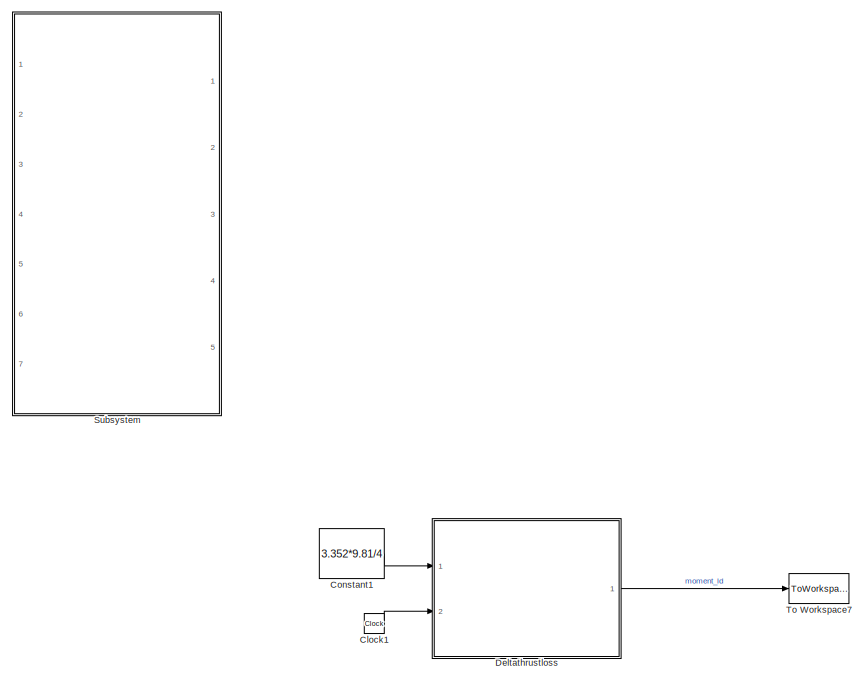
[diagram: root canvas - part 1/8, top right region]
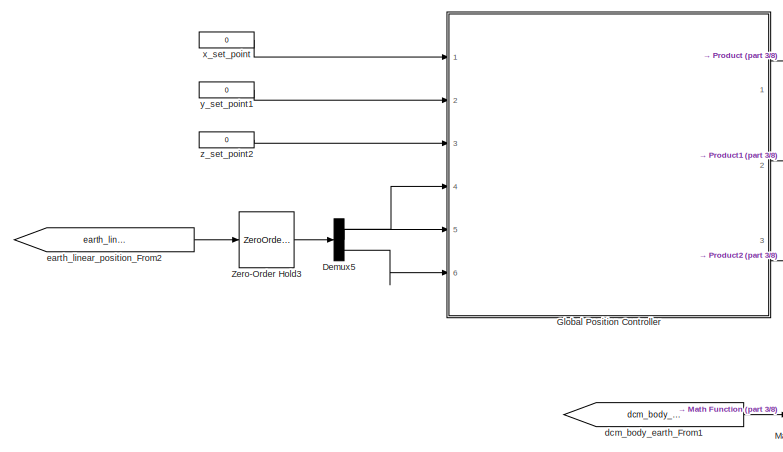
[diagram: root canvas - part 2/8, top left region]
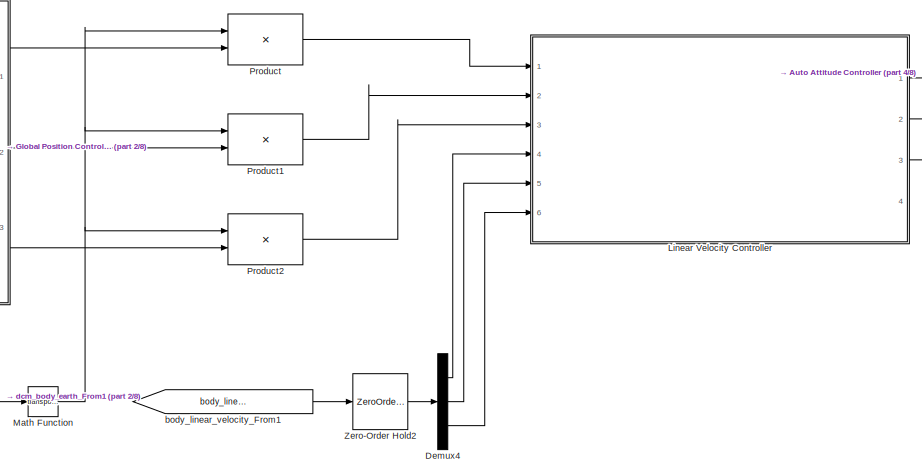
[diagram: root canvas - part 3/8, top left region]
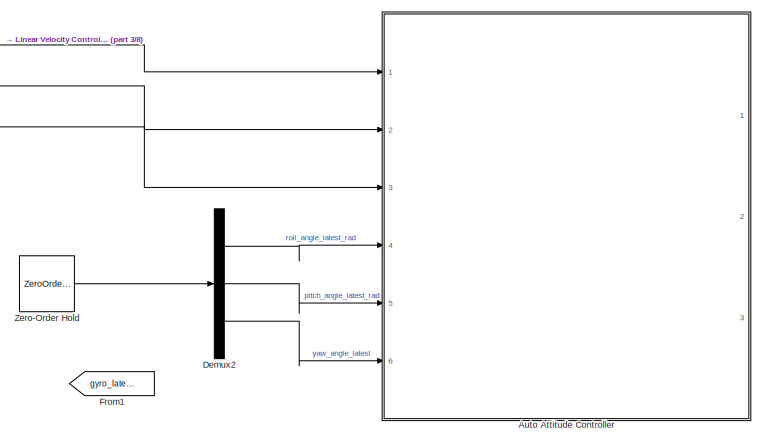
[diagram: root canvas - part 4/8, top center region]
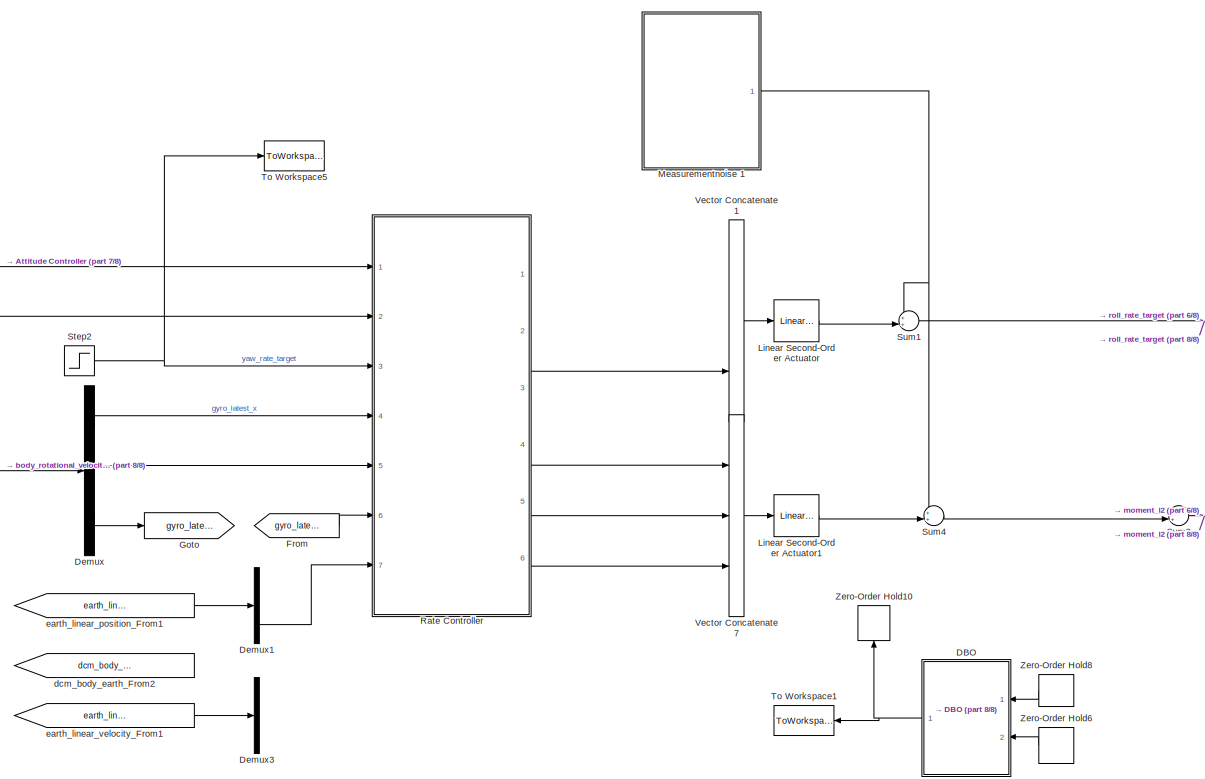
[diagram: root canvas - part 5/8, central region]
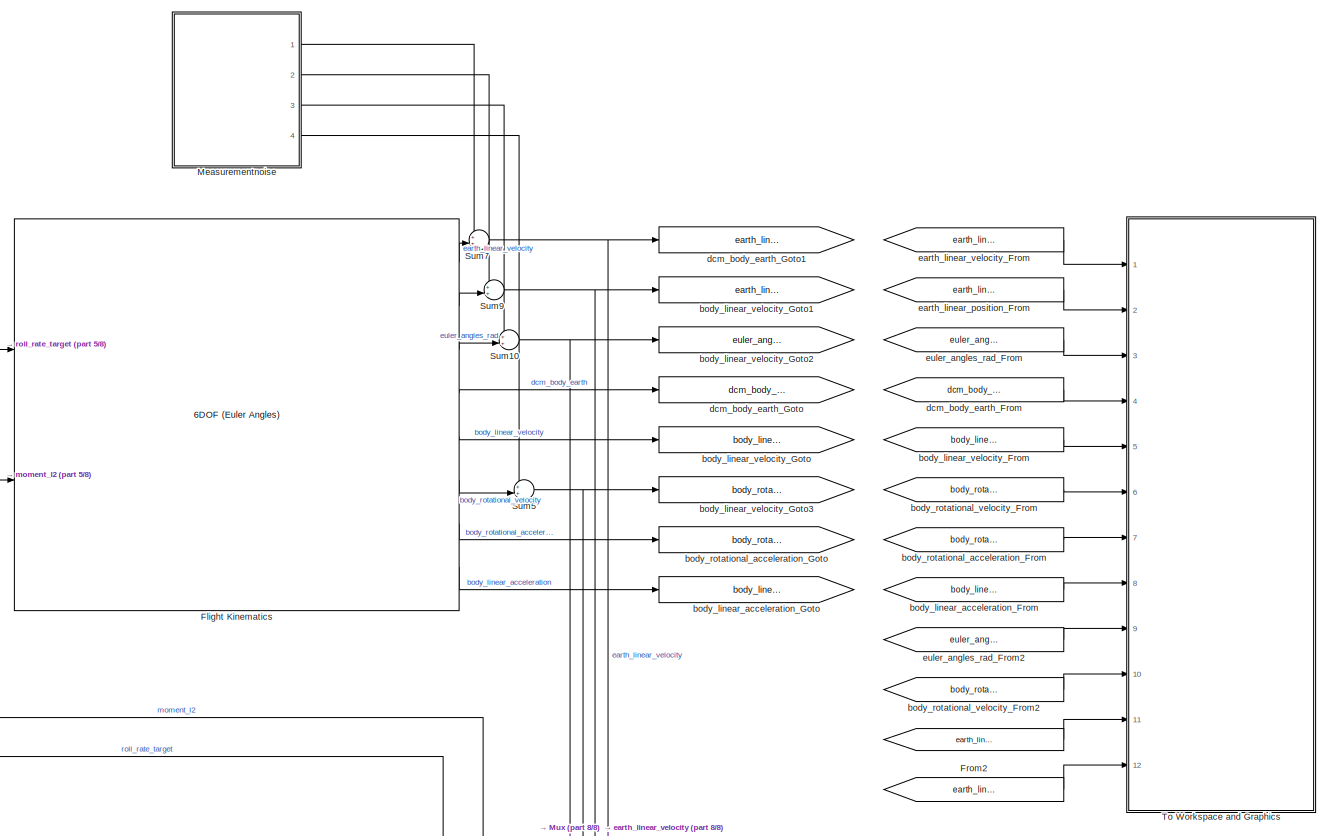
[diagram: root canvas - part 6/8, middle right region]
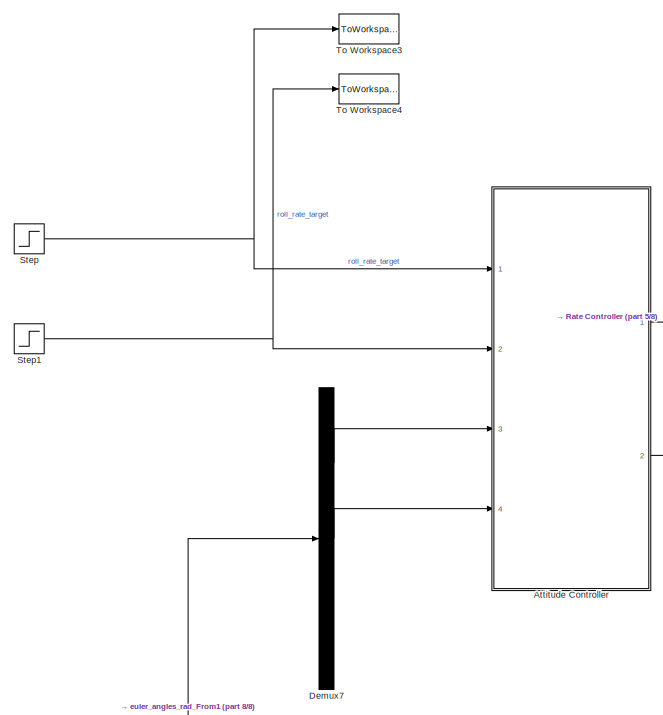
[diagram: root canvas - part 7/8, central region]
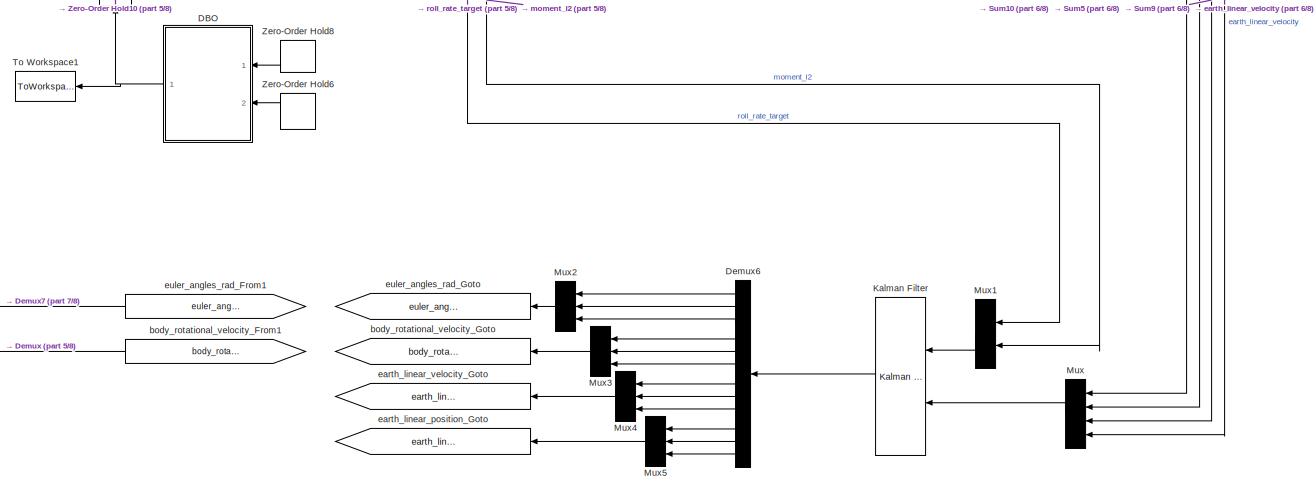
[diagram: root canvas - part 8/8, bottom right region]
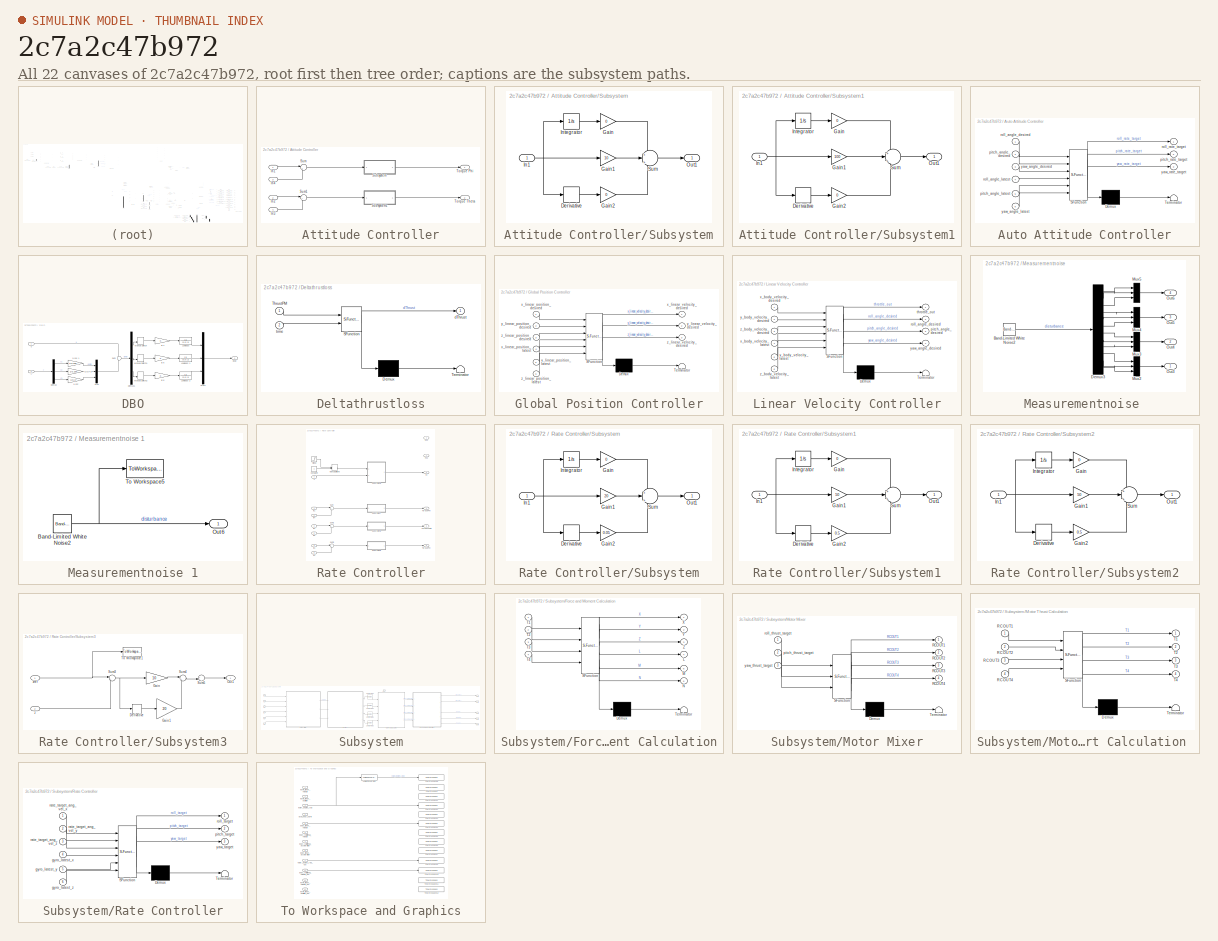
[diagram: thumbnail index - all 22 canvases of the model, root first then tree order]
MODEL slx_2c7a2c47b972
KIND model
CONFIG AbsTol = auto
CONFIG FixedStep = Ts
CONFIG MaxStep = auto
CONFIG MinStep = auto
CONFIG RelTol = 1e-3
CONFIG SampleTimeConstraint = Unconstrained
CONFIG Solver = VariableStepAuto
CONFIG SolverMode = Auto
CONFIG SolverName = VariableStepAuto
CONFIG StartTime = 0.0
CONFIG StopTime = 2
WORKSPACE source: MAT-file member
WORKSPACE MCOS: class17 (value not decoded)
BLOCK [From]       
  GotoTag = earth_linear_velocity_est
  TagVisibility = global
BLOCK [SubSystem] Attitude Controller
  Ports = [4, 2]
  RequestExecContextInheritance = off
  Variant = off
BLOCK [Inport] Attitude Controller/In1
  IconDisplay = Port number
BLOCK [Inport] Attitude Controller/In2
  IconDisplay = Port number
  Port = 2
BLOCK [Inport] Attitude Controller/In4
  IconDisplay = Port number
  Port = 3
BLOCK [Inport] Attitude Controller/In5
  IconDisplay = Port number
  Port = 4
BLOCK [SubSystem] Attitude Controller/Subsystem
  Ports = [1, 1]
  RequestExecContextInheritance = off
  Variant = off
BLOCK [Derivative] Attitude Controller/Subsystem/Derivative
BLOCK [Gain] Attitude Controller/Subsystem/Gain
  Gain = 0
  OutDataTypeStr = Inherit: Inherit via internal rule
  ParamDataTypeStr = Inherit: Inherit via internal rule
  SaturateOnIntegerOverflow = off
BLOCK [Gain] Attitude Controller/Subsystem/Gain1
  Gain = 10
  OutDataTypeStr = Inherit: Inherit via internal rule
  ParamDataTypeStr = Inherit: Inherit via internal rule
  SaturateOnIntegerOverflow = off
BLOCK [Gain] Attitude Controller/Subsystem/Gain2
  Gain = 0
  OutDataTypeStr = Inherit: Inherit via internal rule
  ParamDataTypeStr = Inherit: Inherit via internal rule
  SaturateOnIntegerOverflow = off
BLOCK [Inport] Attitude Controller/Subsystem/In1
  IconDisplay = Port number
BLOCK [Integrator] Attitude Controller/Subsystem/Integrator
  Ports = [1, 1]
BLOCK [Outport] Attitude Controller/Subsystem/Out1
  IconDisplay = Port number
BLOCK [Sum] Attitude Controller/Subsystem/Sum
  IconShape = round
  InputSameDT = off
  Inputs = +|+|+
  OutDataTypeStr = Inherit: Inherit via internal rule
  Ports = [3, 1]
  SaturateOnIntegerOverflow = off
BLOCK [SubSystem] Attitude Controller/Subsystem1
  Ports = [1, 1]
  RequestExecContextInheritance = off
  Variant = off
BLOCK [Derivative] Attitude Controller/Subsystem1/Derivative
BLOCK [Gain] Attitude Controller/Subsystem1/Gain
  Gain = 0
  OutDataTypeStr = Inherit: Inherit via internal rule
  ParamDataTypeStr = Inherit: Inherit via internal rule
  SaturateOnIntegerOverflow = off
BLOCK [Gain] Attitude Controller/Subsystem1/Gain1
  Gain = 100
  OutDataTypeStr = Inherit: Inherit via internal rule
  ParamDataTypeStr = Inherit: Inherit via internal rule
  SaturateOnIntegerOverflow = off
BLOCK [Gain] Attitude Controller/Subsystem1/Gain2
  Gain = 0
  OutDataTypeStr = Inherit: Inherit via internal rule
  ParamDataTypeStr = Inherit: Inherit via internal rule
  SaturateOnIntegerOverflow = off
BLOCK [Inport] Attitude Controller/Subsystem1/In1
  IconDisplay = Port number
BLOCK [Integrator] Attitude Controller/Subsystem1/Integrator
  Ports = [1, 1]
BLOCK [Outport] Attitude Controller/Subsystem1/Out1
  IconDisplay = Port number
BLOCK [Sum] Attitude Controller/Subsystem1/Sum
  IconShape = round
  InputSameDT = off
  Inputs = +|+|+
  OutDataTypeStr = Inherit: Inherit via internal rule
  Ports = [3, 1]
  SaturateOnIntegerOverflow = off
BLOCK [Sum] Attitude Controller/Sum
  IconShape = round
  InputSameDT = off
  Inputs = |+-
  OutDataTypeStr = Inherit: Inherit via internal rule
  Ports = [2, 1]
  SaturateOnIntegerOverflow = off
BLOCK [Sum] Attitude Controller/Sum1
  IconShape = round
  InputSameDT = off
  Inputs = |+-
  OutDataTypeStr = Inherit: Inherit via internal rule
  Ports = [2, 1]
  SaturateOnIntegerOverflow = off
BLOCK [Outport] Attitude Controller/Torque Phi
  IconDisplay = Port number
BLOCK [Outport] Attitude Controller/Torque Theta
  IconDisplay = Port number
  Port = 2
BLOCK [SubSystem] Auto Attitude Controller
  Commented = on
  ErrorFcn = Stateflow.Translate.translate
  PermitHierarchicalResolution = ExplicitOnly
  Ports = [6, 3]
  RequestExecContextInheritance = off
  SFBlockType = MATLAB Function
  TreatAsAtomicUnit = on
  Variant = off
BLOCK [Demux] Auto Attitude Controller/ Demux 
  Outputs = 1
  Ports = [1, 1]
BLOCK [S-Function] Auto Attitude Controller/ SFunction 
  EnableBusSupport = on
  FunctionName = sf_sfun
  PortCounts = [6 4]
  Ports = [6, 4]
  SFunctionDeploymentMode = off
  Tag = Stateflow S-Function Stabilize_mode 2
BLOCK [Terminator] Auto Attitude Controller/ Terminator 
BLOCK [Inport] Auto Attitude Controller/pitch_angle_desired
  IconDisplay = Port number
  Port = 2
BLOCK [Inport] Auto Attitude Controller/pitch_angle_latest
  IconDisplay = Port number
  Port = 5
BLOCK [Outport] Auto Attitude Controller/pitch_rate_target
  IconDisplay = Port number
  Port = 2
BLOCK [Inport] Auto Attitude Controller/roll_angle_desired
  IconDisplay = Port number
BLOCK [Inport] Auto Attitude Controller/roll_angle_latest
  IconDisplay = Port number
  Port = 4
BLOCK [Outport] Auto Attitude Controller/roll_rate_target
  IconDisplay = Port number
BLOCK [Inport] Auto Attitude Controller/yaw_angle_desired
  IconDisplay = Port number
  Port = 3
BLOCK [Inport] Auto Attitude Controller/yaw_angle_latest
  IconDisplay = Port number
  Port = 6
BLOCK [Outport] Auto Attitude Controller/yaw_rate_target
  IconDisplay = Port number
  Port = 3
BLOCK [Clock] Clock1
  Commented = on
BLOCK [Constant] Constant1
  Commented = on
  SampleTime = Ts
  Value = 3.352*9.81/4
BLOCK [SubSystem] DBO
  Commented = on
  Ports = [2, 1]
  RequestExecContextInheritance = off
  Variant = off
BLOCK [Gain] DBO/1//Jxx 1
  Gain = 1/0.02508
  OutDataTypeStr = Inherit: Inherit via internal rule
  ParamDataTypeStr = Inherit: Inherit via internal rule
  SaturateOnIntegerOverflow = off
BLOCK [Gain] DBO/1//Jyy 2
  Gain = 1/0.169
  OutDataTypeStr = Inherit: Inherit via internal rule
  ParamDataTypeStr = Inherit: Inherit via internal rule
  SaturateOnIntegerOverflow = off
BLOCK [Gain] DBO/1//Jzz
  Gain = 1/0.17
  OutDataTypeStr = Inherit: Inherit via internal rule
  ParamDataTypeStr = Inherit: Inherit via internal rule
  SaturateOnIntegerOverflow = off
BLOCK [Gain] DBO/B 4
  OutDataTypeStr = Inherit: Inherit via internal rule
  ParamDataTypeStr = Inherit: Inherit via internal rule
  SaturateOnIntegerOverflow = off
BLOCK [Gain] DBO/B 5
  OutDataTypeStr = Inherit: Inherit via internal rule
  ParamDataTypeStr = Inherit: Inherit via internal rule
  SaturateOnIntegerOverflow = off
BLOCK [Gain] DBO/B 6
  OutDataTypeStr = Inherit: Inherit via internal rule
  ParamDataTypeStr = Inherit: Inherit via internal rule
  SaturateOnIntegerOverflow = off
BLOCK [Demux] DBO/Demux
  DisplayOption = bar
  Outputs = 3
  Ports = [1, 3]
BLOCK [Demux] DBO/Demux1
  DisplayOption = bar
  Outputs = 3
  Ports = [1, 3]
BLOCK [TransferFcn] DBO/Lowpass 
  Denominator = [0.5 1]
BLOCK [TransferFcn] DBO/Lowpass 1
  Denominator = [0.5 1]
BLOCK [TransferFcn] DBO/Lowpass 2
  Denominator = [0.5 1]
BLOCK [ManualSwitch] DBO/Manual Switch
  CurrentSetting = 0
BLOCK [ManualSwitch] DBO/Manual Switch1
  CurrentSetting = 0
BLOCK [ManualSwitch] DBO/Manual Switch2
  CurrentSetting = 0
BLOCK [Mux] DBO/Mux
  DisplayOption = bar
  Inputs = 3
  Ports = [3, 1]
BLOCK [Mux] DBO/Mux1
  DisplayOption = bar
  Inputs = 3
  Ports = [3, 1]
BLOCK [Sum] DBO/Sum
  IconShape = round
  InputSameDT = off
  Inputs = -|+
  OutDataTypeStr = Inherit: Inherit via internal rule
  Ports = [2, 1]
  SaturateOnIntegerOverflow = off
BLOCK [Outport] DBO/dhat 
  IconDisplay = Port number
BLOCK [Inport] DBO/u 
  IconDisplay = Port number
BLOCK [Inport] DBO/y
  IconDisplay = Port number
  Port = 2
BLOCK [SubSystem] Deltathrustloss
  Commented = on
  ErrorFcn = Stateflow.Translate.translate
  PermitHierarchicalResolution = ExplicitOnly
  Ports = [2, 1]
  RequestExecContextInheritance = off
  SFBlockType = MATLAB Function
  TreatAsAtomicUnit = on
  Variant = off
BLOCK [Demux] Deltathrustloss/ Demux 
  Outputs = 1
  Ports = [1, 1]
BLOCK [S-Function] Deltathrustloss/ SFunction 
  EnableBusSupport = on
  FunctionName = sf_sfun
  PortCounts = [2 2]
  Ports = [2, 2]
  SFunctionDeploymentMode = off
  Tag = Stateflow S-Function Stabilize_mode 4
BLOCK [Terminator] Deltathrustloss/ Terminator 
BLOCK [Inport] Deltathrustloss/ThrustPM
  IconDisplay = Port number
BLOCK [Outport] Deltathrustloss/dThrust
  IconDisplay = Port number
BLOCK [Inport] Deltathrustloss/time
  IconDisplay = Port number
  Port = 2
BLOCK [Demux] Demux
  DisplayOption = bar
  Outputs = 3
  Ports = [1, 3]
BLOCK [Demux] Demux1
  DisplayOption = bar
  Outputs = 3
  Ports = [1, 3]
BLOCK [Demux] Demux2
  Commented = on
  DisplayOption = bar
  Outputs = 3
  Ports = [1, 3]
BLOCK [Demux] Demux3
  DisplayOption = bar
  Outputs = 3
  Ports = [1, 3]
BLOCK [Demux] Demux4
  Commented = on
  DisplayOption = bar
  Outputs = 3
  Ports = [1, 3]
BLOCK [Demux] Demux5
  Commented = on
  DisplayOption = bar
  Outputs = 3
  Ports = [1, 3]
BLOCK [Demux] Demux6
  DisplayOption = bar
  Outputs = 12
  Ports = [1, 12]
BLOCK [Demux] Demux7
  DisplayOption = bar
  Outputs = 3
  Ports = [1, 3]
BLOCK [Reference] Flight Kinematics  REF=aerolib6dof2/6DOF (Euler Angles)
  Ports = [2, 8]
  SourceBlock = aerolib6dof2/6DOF (Euler Angles)
  SourceType = 6DOF EoM (Body Axis)
BLOCK [From] From
  GotoTag = gyro_latest_z
BLOCK [From] From1
  Commented = on
  GotoTag = gyro_latest_z
BLOCK [From] From2
  GotoTag = earth_linear_position_est
  TagVisibility = global
BLOCK [SubSystem] Global Position Controller
  Commented = on
  ErrorFcn = Stateflow.Translate.translate
  PermitHierarchicalResolution = ExplicitOnly
  Ports = [6, 3]
  RequestExecContextInheritance = off
  SFBlockType = MATLAB Function
  TreatAsAtomicUnit = on
  Variant = off
BLOCK [Demux] Global Position Controller/ Demux 
  Outputs = 1
  Ports = [1, 1]
BLOCK [S-Function] Global Position Controller/ SFunction 
  EnableBusSupport = on
  FunctionName = sf_sfun
  PortCounts = [6 4]
  Ports = [6, 4]
  SFunctionDeploymentMode = off
  Tag = Stateflow S-Function Stabilize_mode 7
BLOCK [Terminator] Global Position Controller/ Terminator 
BLOCK [Inport] Global Position Controller/x_linear_position_desired
  IconDisplay = Port number
BLOCK [Inport] Global Position Controller/x_linear_position_latest
  IconDisplay = Port number
  Port = 4
BLOCK [Outport] Global Position Controller/x_linear_velocity_desired
  IconDisplay = Port number
BLOCK [Inport] Global Position Controller/y_linear_position_desired
  IconDisplay = Port number
  Port = 2
BLOCK [Inport] Global Position Controller/y_linear_position_latest
  IconDisplay = Port number
  Port = 5
BLOCK [Outport] Global Position Controller/y_linear_velocity_desired
  IconDisplay = Port number
  Port = 2
BLOCK [Inport] Global Position Controller/z_linear_position_desired
  IconDisplay = Port number
  Port = 3
BLOCK [Inport] Global Position Controller/z_linear_position_latest
  IconDisplay = Port number
  Port = 6
BLOCK [Outport] Global Position Controller/z_linear_velocity_desired
  IconDisplay = Port number
  Port = 3
BLOCK [Goto] Goto
  GotoTag = gyro_latest_z
BLOCK [Reference] Kalman Filter  REF=ctrlSharedLib/Kalman Filter
  Ports = [2, 1]
  SourceBlock = ctrlSharedLib/Kalman Filter
  SourceType = ctrlKalmanFilter
BLOCK [Reference] Linear Second-Order Actuator  REF=aerolibactuator/Linear Second-Order Actuator
  Ports = [1, 1]
  SourceBlock = aerolibactuator/Linear Second-Order Actuator
  SourceType = LinearSecondOrderActuator
BLOCK [Reference] Linear Second-Order Actuator1  REF=aerolibactuator/Linear Second-Order Actuator
  Ports = [1, 1]
  SourceBlock = aerolibactuator/Linear Second-Order Actuator
  SourceType = LinearSecondOrderActuator
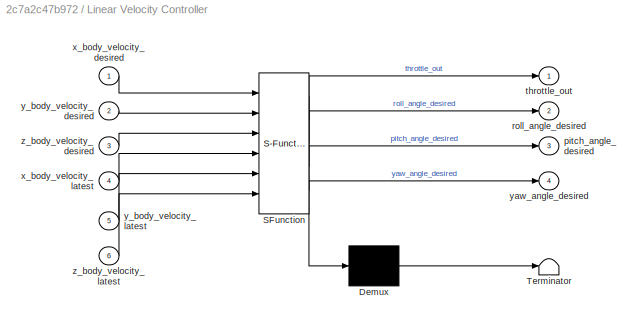
BLOCK [SubSystem] Linear Velocity Controller
  Commented = on
  ErrorFcn = Stateflow.Translate.translate
  PermitHierarchicalResolution = ExplicitOnly
  Ports = [6, 4]
  RequestExecContextInheritance = off
  SFBlockType = MATLAB Function
  TreatAsAtomicUnit = on
  Variant = off
BLOCK [Demux] Linear Velocity Controller/ Demux 
  Outputs = 1
  Ports = [1, 1]
BLOCK [S-Function] Linear Velocity Controller/ SFunction 
  EnableBusSupport = on
  FunctionName = sf_sfun
  PortCounts = [6 5]
  Ports = [6, 5]
  SFunctionDeploymentMode = off
  Tag = Stateflow S-Function Stabilize_mode 3
BLOCK [Terminator] Linear Velocity Controller/ Terminator 
BLOCK [Outport] Linear Velocity Controller/pitch_angle_desired
  IconDisplay = Port number
  Port = 3
BLOCK [Outport] Linear Velocity Controller/roll_angle_desired
  IconDisplay = Port number
  Port = 2
BLOCK [Outport] Linear Velocity Controller/throttle_out
  IconDisplay = Port number
BLOCK [Inport] Linear Velocity Controller/x_body_velocity_desired
  IconDisplay = Port number
BLOCK [Inport] Linear Velocity Controller/x_body_velocity_latest
  IconDisplay = Port number
  Port = 4
BLOCK [Inport] Linear Velocity Controller/y_body_velocity_desired
  IconDisplay = Port number
  Port = 2
BLOCK [Inport] Linear Velocity Controller/y_body_velocity_latest
  IconDisplay = Port number
  Port = 5
BLOCK [Outport] Linear Velocity Controller/yaw_angle_desired
  IconDisplay = Port number
  Port = 4
BLOCK [Inport] Linear Velocity Controller/z_body_velocity_desired
  IconDisplay = Port number
  Port = 3
BLOCK [Inport] Linear Velocity Controller/z_body_velocity_latest
  IconDisplay = Port number
  Port = 6
BLOCK [Math] Math Function
  Commented = on
  Operator = transpose
  Ports = [1, 1]
BLOCK [SubSystem] Measurementnoise 
  Ports = [0, 4]
  RequestExecContextInheritance = off
  Variant = off
BLOCK [Reference] Measurementnoise /Band-Limited White Noise2  REF=simulink/Sources/Band-Limited
White Noise
  Ports = [0, 1]
  SourceBlock = simulink/Sources/Band-Limited\nWhite Noise
  SourceType = Band-Limited White Noise.
BLOCK [Demux] Measurementnoise /Demux3
  DisplayOption = bar
  Outputs = 12
  Ports = [1, 12]
BLOCK [Mux] Measurementnoise /Mux2
  DisplayOption = bar
  Inputs = 3
  Ports = [3, 1]
BLOCK [Mux] Measurementnoise /Mux3
  DisplayOption = bar
  Inputs = 3
  Ports = [3, 1]
BLOCK [Mux] Measurementnoise /Mux4
  DisplayOption = bar
  Inputs = 3
  Ports = [3, 1]
BLOCK [Mux] Measurementnoise /Mux5
  DisplayOption = bar
  Inputs = 3
  Ports = [3, 1]
BLOCK [Outport] Measurementnoise /Out3
  IconDisplay = Port number
BLOCK [Outport] Measurementnoise /Out4
  IconDisplay = Port number
  Port = 2
BLOCK [Outport] Measurementnoise /Out5
  IconDisplay = Port number
  Port = 3
BLOCK [Outport] Measurementnoise /Out6
  IconDisplay = Port number
  Port = 4
BLOCK [SubSystem] Measurementnoise 1
  Ports = [0, 1]
  RequestExecContextInheritance = off
  Variant = off
BLOCK [Reference] Measurementnoise 1/Band-Limited White Noise2  REF=simulink/Sources/Band-Limited
White Noise
  Ports = [0, 1]
  SourceBlock = simulink/Sources/Band-Limited\nWhite Noise
  SourceType = Band-Limited White Noise.
BLOCK [Outport] Measurementnoise 1/Out6
  IconDisplay = Port number
BLOCK [ToWorkspace] Measurementnoise 1/To Workspace5
  FixptAsFi = on
  MaxDataPoints = inf
  Ports = [1]
  SampleTime = -1
  Save2DSignal = 3-D array (concatenate along third dimension)
  VariableName = whitenoise
BLOCK [Mux] Mux
  DisplayOption = bar
  Ports = [4, 1]
BLOCK [Mux] Mux1
  DisplayOption = bar
  Inputs = 2
  Ports = [2, 1]
BLOCK [Mux] Mux2
  DisplayOption = bar
  Inputs = 3
  Ports = [3, 1]
BLOCK [Mux] Mux3
  DisplayOption = bar
  Inputs = 3
  Ports = [3, 1]
BLOCK [Mux] Mux4
  DisplayOption = bar
  Inputs = 3
  Ports = [3, 1]
BLOCK [Mux] Mux5
  DisplayOption = bar
  Inputs = 3
  Ports = [3, 1]
BLOCK [Product] Product
  Commented = on
  InputSameDT = off
  Multiplication = Matrix(*)
  OutDataTypeStr = Inherit: Inherit via internal rule
  Ports = [2, 1]
  RndMeth = Floor
  SaturateOnIntegerOverflow = off
BLOCK [Product] Product1
  Commented = on
  InputSameDT = off
  Multiplication = Matrix(*)
  OutDataTypeStr = Inherit: Inherit via internal rule
  Ports = [2, 1]
  RndMeth = Floor
  SaturateOnIntegerOverflow = off
BLOCK [Product] Product2
  Commented = on
  InputSameDT = off
  Multiplication = Matrix(*)
  OutDataTypeStr = Inherit: Inherit via internal rule
  Ports = [2, 1]
  RndMeth = Floor
  SaturateOnIntegerOverflow = off
BLOCK [SubSystem] Rate Controller
  Ports = [7, 6]
  RequestExecContextInheritance = off
  Variant = off
BLOCK [Constant] Rate Controller/Constant4
  SampleTime = 0
  Value = 0
BLOCK [Outport] Rate Controller/Fz  
  IconDisplay = Port number
  Port = 3
BLOCK [Outport] Rate Controller/Fz  1
  IconDisplay = Port number
BLOCK [Outport] Rate Controller/Fz  2
  IconDisplay = Port number
  Port = 2
BLOCK [Inport] Rate Controller/In1
  IconDisplay = Port number
BLOCK [Inport] Rate Controller/In2
  IconDisplay = Port number
  Port = 2
BLOCK [Inport] Rate Controller/In3
  IconDisplay = Port number
  Port = 3
BLOCK [Inport] Rate Controller/In4
  IconDisplay = Port number
  Port = 4
BLOCK [Inport] Rate Controller/In5
  IconDisplay = Port number
  Port = 5
BLOCK [Inport] Rate Controller/In6
  IconDisplay = Port number
  Port = 6
BLOCK [ManualSwitch] Rate Controller/Manual Switch6
BLOCK [Step] Rate Controller/Step6
  SampleTime = 0
  Time = 2
BLOCK [SubSystem] Rate Controller/Subsystem
  Ports = [1, 1]
  RequestExecContextInheritance = off
  Variant = off
BLOCK [Derivative] Rate Controller/Subsystem/Derivative
BLOCK [Gain] Rate Controller/Subsystem/Gain
  Gain = 0
  OutDataTypeStr = Inherit: Inherit via internal rule
  ParamDataTypeStr = Inherit: Inherit via internal rule
  SaturateOnIntegerOverflow = off
BLOCK [Gain] Rate Controller/Subsystem/Gain1
  Gain = 20
  OutDataTypeStr = Inherit: Inherit via internal rule
  ParamDataTypeStr = Inherit: Inherit via internal rule
  SaturateOnIntegerOverflow = off
BLOCK [Gain] Rate Controller/Subsystem/Gain2
  Gain = 0.05
  OutDataTypeStr = Inherit: Inherit via internal rule
  ParamDataTypeStr = Inherit: Inherit via internal rule
  SaturateOnIntegerOverflow = off
BLOCK [Inport] Rate Controller/Subsystem/In1
  IconDisplay = Port number
BLOCK [Integrator] Rate Controller/Subsystem/Integrator
  Ports = [1, 1]
BLOCK [Outport] Rate Controller/Subsystem/Out1
  IconDisplay = Port number
BLOCK [Sum] Rate Controller/Subsystem/Sum
  IconShape = round
  InputSameDT = off
  Inputs = +|+|+
  OutDataTypeStr = Inherit: Inherit via internal rule
  Ports = [3, 1]
  SaturateOnIntegerOverflow = off
BLOCK [SubSystem] Rate Controller/Subsystem1
  Ports = [1, 1]
  RequestExecContextInheritance = off
  Variant = off
BLOCK [Derivative] Rate Controller/Subsystem1/Derivative
BLOCK [Gain] Rate Controller/Subsystem1/Gain
  Gain = 0
  OutDataTypeStr = Inherit: Inherit via internal rule
  ParamDataTypeStr = Inherit: Inherit via internal rule
  SaturateOnIntegerOverflow = off
BLOCK [Gain] Rate Controller/Subsystem1/Gain1
  Gain = 50
  OutDataTypeStr = Inherit: Inherit via internal rule
  ParamDataTypeStr = Inherit: Inherit via internal rule
  SaturateOnIntegerOverflow = off
BLOCK [Gain] Rate Controller/Subsystem1/Gain2
  Gain = 0.5
  OutDataTypeStr = Inherit: Inherit via internal rule
  ParamDataTypeStr = Inherit: Inherit via internal rule
  SaturateOnIntegerOverflow = off
BLOCK [Inport] Rate Controller/Subsystem1/In1
  IconDisplay = Port number
BLOCK [Integrator] Rate Controller/Subsystem1/Integrator
  Ports = [1, 1]
BLOCK [Outport] Rate Controller/Subsystem1/Out1
  IconDisplay = Port number
BLOCK [Sum] Rate Controller/Subsystem1/Sum
  IconShape = round
  InputSameDT = off
  Inputs = +|+|+
  OutDataTypeStr = Inherit: Inherit via internal rule
  Ports = [3, 1]
  SaturateOnIntegerOverflow = off
BLOCK [SubSystem] Rate Controller/Subsystem2
  Ports = [1, 1]
  RequestExecContextInheritance = off
  Variant = off
BLOCK [Derivative] Rate Controller/Subsystem2/Derivative
BLOCK [Gain] Rate Controller/Subsystem2/Gain
  Gain = 0
  OutDataTypeStr = Inherit: Inherit via internal rule
  ParamDataTypeStr = Inherit: Inherit via internal rule
  SaturateOnIntegerOverflow = off
BLOCK [Gain] Rate Controller/Subsystem2/Gain1
  Gain = 50
  OutDataTypeStr = Inherit: Inherit via internal rule
  ParamDataTypeStr = Inherit: Inherit via internal rule
  SaturateOnIntegerOverflow = off
BLOCK [Gain] Rate Controller/Subsystem2/Gain2
  Gain = 0.5
  OutDataTypeStr = Inherit: Inherit via internal rule
  ParamDataTypeStr = Inherit: Inherit via internal rule
  SaturateOnIntegerOverflow = off
BLOCK [Inport] Rate Controller/Subsystem2/In1
  IconDisplay = Port number
BLOCK [Integrator] Rate Controller/Subsystem2/Integrator
  Ports = [1, 1]
BLOCK [Outport] Rate Controller/Subsystem2/Out1
  IconDisplay = Port number
BLOCK [Sum] Rate Controller/Subsystem2/Sum
  IconShape = round
  InputSameDT = off
  Inputs = +|+|+
  OutDataTypeStr = Inherit: Inherit via internal rule
  Ports = [3, 1]
  SaturateOnIntegerOverflow = off
BLOCK [SubSystem] Rate Controller/Subsystem3
  Ports = [2, 1]
  RequestExecContextInheritance = off
  Variant = off
BLOCK [Derivative] Rate Controller/Subsystem3/Derivative
BLOCK [Gain] Rate Controller/Subsystem3/Gain
  Gain = 10
  OutDataTypeStr = Inherit: Inherit via internal rule
  ParamDataTypeStr = Inherit: Inherit via internal rule
  SaturateOnIntegerOverflow = off
BLOCK [Gain] Rate Controller/Subsystem3/Gain1
  Gain = 20
  OutDataTypeStr = Inherit: Inherit via internal rule
  ParamDataTypeStr = Inherit: Inherit via internal rule
  SaturateOnIntegerOverflow = off
BLOCK [Outport] Rate Controller/Subsystem3/Out1
  IconDisplay = Port number
BLOCK [Sum] Rate Controller/Subsystem3/Sum3
  IconShape = round
  InputSameDT = off
  Inputs = |+-
  OutDataTypeStr = Inherit: Inherit via internal rule
  Ports = [2, 1]
  SaturateOnIntegerOverflow = off
BLOCK [Sum] Rate Controller/Subsystem3/Sum4
  IconShape = round
  InputSameDT = off
  Inputs = |++
  OutDataTypeStr = Inherit: Inherit via internal rule
  Ports = [2, 1]
  SaturateOnIntegerOverflow = off
BLOCK [Sum] Rate Controller/Subsystem3/Sum5
  IconShape = round
  InputSameDT = off
  Inputs = ++|
  OutDataTypeStr = Inherit: Inherit via internal rule
  Ports = [2, 1]
  SaturateOnIntegerOverflow = off
BLOCK [ToWorkspace] Rate Controller/Subsystem3/To Workspace1
  FixptAsFi = on
  MaxDataPoints = inf
  Ports = [1]
  SampleTime = -1
  Save2DSignal = 3-D array (concatenate along third dimension)
  VariableName = zref
BLOCK [Inport] Rate Controller/Subsystem3/z
  IconDisplay = Port number
  Port = 2
BLOCK [Inport] Rate Controller/Subsystem3/zref
  IconDisplay = Port number
BLOCK [Sum] Rate Controller/Sum
  IconShape = round
  InputSameDT = off
  Inputs = |+-
  OutDataTypeStr = Inherit: Inherit via internal rule
  Ports = [2, 1]
  SaturateOnIntegerOverflow = off
BLOCK [Sum] Rate Controller/Sum1
  IconShape = round
  InputSameDT = off
  Inputs = |+-
  OutDataTypeStr = Inherit: Inherit via internal rule
  Ports = [2, 1]
  SaturateOnIntegerOverflow = off
BLOCK [Sum] Rate Controller/Sum2
  IconShape = round
  InputSameDT = off
  Inputs = |+-
  OutDataTypeStr = Inherit: Inherit via internal rule
  Ports = [2, 1]
  SaturateOnIntegerOverflow = off
BLOCK [Outport] Rate Controller/Torque Phi
  IconDisplay = Port number
  Port = 4
BLOCK [Outport] Rate Controller/Torque Psi
  IconDisplay = Port number
  Port = 6
BLOCK [Outport] Rate Controller/Torque Theta
  IconDisplay = Port number
  Port = 5
BLOCK [Inport] Rate Controller/z
  IconDisplay = Port number
  Port = 7
BLOCK [Step] Step
  After = 0.1
  SampleTime = 0
BLOCK [Step] Step1
  After = 0.1
  SampleTime = 0
  Time = 0.5
BLOCK [Step] Step2
  After = 10
  SampleTime = 0
BLOCK [SubSystem] Subsystem
  Commented = on
  Ports = [7, 5]
  RequestExecContextInheritance = off
  Variant = off
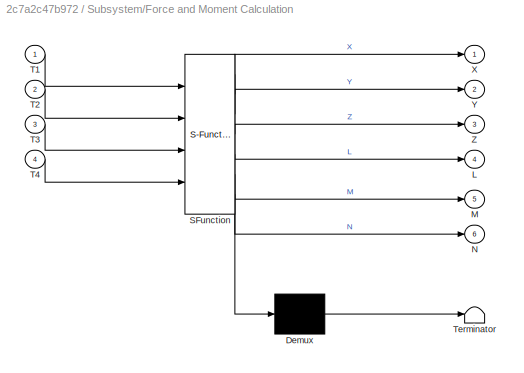
BLOCK [SubSystem] Subsystem/Force and Moment Calculation
  ErrorFcn = Stateflow.Translate.translate
  PermitHierarchicalResolution = ExplicitOnly
  Ports = [4, 6]
  RequestExecContextInheritance = off
  SFBlockType = MATLAB Function
  TreatAsAtomicUnit = on
  Variant = off
BLOCK [Demux] Subsystem/Force and Moment Calculation/ Demux 
  Outputs = 1
  Ports = [1, 1]
BLOCK [S-Function] Subsystem/Force and Moment Calculation/ SFunction 
  EnableBusSupport = on
  FunctionName = sf_sfun
  PortCounts = [4 7]
  Ports = [4, 7]
  SFunctionDeploymentMode = off
  Tag = Stateflow S-Function Stabilize_mode 6
BLOCK [Terminator] Subsystem/Force and Moment Calculation/ Terminator 
BLOCK [Outport] Subsystem/Force and Moment Calculation/L
  IconDisplay = Port number
  Port = 4
BLOCK [Outport] Subsystem/Force and Moment Calculation/M
  IconDisplay = Port number
  Port = 5
BLOCK [Outport] Subsystem/Force and Moment Calculation/N
  IconDisplay = Port number
  Port = 6
BLOCK [Inport] Subsystem/Force and Moment Calculation/T1
  IconDisplay = Port number
BLOCK [Inport] Subsystem/Force and Moment Calculation/T2
  IconDisplay = Port number
  Port = 2
BLOCK [Inport] Subsystem/Force and Moment Calculation/T3
  IconDisplay = Port number
  Port = 3
BLOCK [Inport] Subsystem/Force and Moment Calculation/T4
  IconDisplay = Port number
  Port = 4
BLOCK [Outport] Subsystem/Force and Moment Calculation/X
  IconDisplay = Port number
BLOCK [Outport] Subsystem/Force and Moment Calculation/Y
  IconDisplay = Port number
  Port = 2
BLOCK [Outport] Subsystem/Force and Moment Calculation/Z
  IconDisplay = Port number
  Port = 3
BLOCK [Inport] Subsystem/In1
  IconDisplay = Port number
BLOCK [Inport] Subsystem/In2
  IconDisplay = Port number
  Port = 2
BLOCK [Inport] Subsystem/In3
  IconDisplay = Port number
  Port = 6
BLOCK [Inport] Subsystem/In5
  IconDisplay = Port number
  Port = 3
BLOCK [Inport] Subsystem/In6
  IconDisplay = Port number
  Port = 5
BLOCK [Inport] Subsystem/In7
  IconDisplay = Port number
  Port = 4
BLOCK [SubSystem] Subsystem/Motor Mixer
  ErrorFcn = Stateflow.Translate.translate
  PermitHierarchicalResolution = ExplicitOnly
  Ports = [3, 4]
  RequestExecContextInheritance = off
  SFBlockType = MATLAB Function
  TreatAsAtomicUnit = on
  Variant = off
BLOCK [Demux] Subsystem/Motor Mixer/ Demux 
  Outputs = 1
  Ports = [1, 1]
BLOCK [S-Function] Subsystem/Motor Mixer/ SFunction 
  EnableBusSupport = on
  FunctionName = sf_sfun
  PortCounts = [3 5]
  Ports = [3, 5]
  SFunctionDeploymentMode = off
  Tag = Stateflow S-Function Stabilize_mode 5
BLOCK [Terminator] Subsystem/Motor Mixer/ Terminator 
BLOCK [Outport] Subsystem/Motor Mixer/RCOUT1
  IconDisplay = Port number
BLOCK [Outport] Subsystem/Motor Mixer/RCOUT2
  IconDisplay = Port number
  Port = 2
BLOCK [Outport] Subsystem/Motor Mixer/RCOUT3
  IconDisplay = Port number
  Port = 3
BLOCK [Outport] Subsystem/Motor Mixer/RCOUT4
  IconDisplay = Port number
  Port = 4
BLOCK [Inport] Subsystem/Motor Mixer/pitch_thrust_target
  IconDisplay = Port number
  Port = 2
BLOCK [Inport] Subsystem/Motor Mixer/roll_thrust_target
  IconDisplay = Port number
BLOCK [Inport] Subsystem/Motor Mixer/yaw_thrust_target
  IconDisplay = Port number
  Port = 3
BLOCK [SubSystem] Subsystem/Motor Thrust Calculation 
  ErrorFcn = Stateflow.Translate.translate
  PermitHierarchicalResolution = ExplicitOnly
  Ports = [4, 4]
  RequestExecContextInheritance = off
  SFBlockType = MATLAB Function
  TreatAsAtomicUnit = on
  Variant = off
BLOCK [Demux] Subsystem/Motor Thrust Calculation / Demux 
  Outputs = 1
  Ports = [1, 1]
BLOCK [S-Function] Subsystem/Motor Thrust Calculation / SFunction 
  EnableBusSupport = on
  FunctionName = sf_sfun
  PortCounts = [4 5]
  Ports = [4, 5]
  SFunctionDeploymentMode = off
  Tag = Stateflow S-Function Stabilize_mode 8
BLOCK [Terminator] Subsystem/Motor Thrust Calculation / Terminator 
BLOCK [Inport] Subsystem/Motor Thrust Calculation /RCOUT1
  IconDisplay = Port number
BLOCK [Inport] Subsystem/Motor Thrust Calculation /RCOUT2
  IconDisplay = Port number
  Port = 2
BLOCK [Inport] Subsystem/Motor Thrust Calculation /RCOUT3
  IconDisplay = Port number
  Port = 3
BLOCK [Inport] Subsystem/Motor Thrust Calculation /RCOUT4
  IconDisplay = Port number
  Port = 4
BLOCK [Outport] Subsystem/Motor Thrust Calculation /T1
  IconDisplay = Port number
BLOCK [Outport] Subsystem/Motor Thrust Calculation /T2
  IconDisplay = Port number
  Port = 2
BLOCK [Outport] Subsystem/Motor Thrust Calculation /T3
  IconDisplay = Port number
  Port = 3
BLOCK [Outport] Subsystem/Motor Thrust Calculation /T4
  IconDisplay = Port number
  Port = 4
BLOCK [Outport] Subsystem/Out1
  IconDisplay = Port number
BLOCK [Outport] Subsystem/Out2
  IconDisplay = Port number
  Port = 2
BLOCK [Outport] Subsystem/Out4
  IconDisplay = Port number
  Port = 3
BLOCK [Outport] Subsystem/Out5
  IconDisplay = Port number
  Port = 4
BLOCK [Outport] Subsystem/Out6
  IconDisplay = Port number
  Port = 5
BLOCK [SubSystem] Subsystem/Rate Controller
  ErrorFcn = Stateflow.Translate.translate
  PermitHierarchicalResolution = ExplicitOnly
  Ports = [6, 3]
  RequestExecContextInheritance = off
  SFBlockType = MATLAB Function
  TreatAsAtomicUnit = on
  Variant = off
BLOCK [Demux] Subsystem/Rate Controller/ Demux 
  Outputs = 1
  Ports = [1, 1]
BLOCK [S-Function] Subsystem/Rate Controller/ SFunction 
  EnableBusSupport = on
  FunctionName = sf_sfun
  PortCounts = [6 4]
  Ports = [6, 4]
  SFunctionDeploymentMode = off
  Tag = Stateflow S-Function Stabilize_mode 1
BLOCK [Terminator] Subsystem/Rate Controller/ Terminator 
BLOCK [Inport] Subsystem/Rate Controller/gyro_latest_x
  IconDisplay = Port number
  Port = 4
BLOCK [Inport] Subsystem/Rate Controller/gyro_latest_y
  IconDisplay = Port number
  Port = 5
BLOCK [Inport] Subsystem/Rate Controller/gyro_latest_z
  IconDisplay = Port number
  Port = 6
BLOCK [Outport] Subsystem/Rate Controller/pitch_target
  IconDisplay = Port number
  Port = 2
BLOCK [Inport] Subsystem/Rate Controller/rate_target_ang_vel_x
  IconDisplay = Port number
BLOCK [Inport] Subsystem/Rate Controller/rate_target_ang_vel_y
  IconDisplay = Port number
  Port = 2
BLOCK [Inport] Subsystem/Rate Controller/rate_target_ang_vel_z
  IconDisplay = Port number
  Port = 3
BLOCK [Outport] Subsystem/Rate Controller/roll_target
  IconDisplay = Port number
BLOCK [Outport] Subsystem/Rate Controller/yaw_target
  IconDisplay = Port number
  Port = 3
BLOCK [ZeroOrderHold] Subsystem/Zero-Order Hold2
  SampleTime = dtzoh
BLOCK [ZeroOrderHold] Subsystem/Zero-Order Hold3
  SampleTime = dtzoh
BLOCK [ZeroOrderHold] Subsystem/Zero-Order Hold4
  SampleTime = dtzoh
BLOCK [ZeroOrderHold] Subsystem/Zero-Order Hold5
  SampleTime = dtzoh
BLOCK [Inport] Subsystem/zdot
  IconDisplay = Port number
  Port = 7
BLOCK [Sum] Sum1
  IconShape = round
  InputSameDT = off
  Inputs = ++|
  OutDataTypeStr = Inherit: Inherit via internal rule
  Ports = [2, 1]
  SaturateOnIntegerOverflow = off
BLOCK [Sum] Sum10
  IconShape = round
  InputSameDT = off
  Inputs = ++|
  OutDataTypeStr = Inherit: Inherit via internal rule
  Ports = [2, 1]
  SaturateOnIntegerOverflow = off
BLOCK [Sum] Sum3
  IconShape = round
  InputSameDT = off
  Inputs = -+|
  OutDataTypeStr = Inherit: Inherit via internal rule
  Ports = [2, 1]
  SaturateOnIntegerOverflow = off
BLOCK [Sum] Sum4
  IconShape = round
  InputSameDT = off
  Inputs = ++|
  OutDataTypeStr = Inherit: Inherit via internal rule
  Ports = [2, 1]
  SaturateOnIntegerOverflow = off
BLOCK [Sum] Sum5
  IconShape = round
  InputSameDT = off
  Inputs = ++|
  OutDataTypeStr = Inherit: Inherit via internal rule
  Ports = [2, 1]
  SaturateOnIntegerOverflow = off
BLOCK [Sum] Sum7
  IconShape = round
  InputSameDT = off
  Inputs = ++|
  OutDataTypeStr = Inherit: Inherit via internal rule
  Ports = [2, 1]
  SaturateOnIntegerOverflow = off
BLOCK [Sum] Sum9
  IconShape = round
  InputSameDT = off
  Inputs = ++|
  OutDataTypeStr = Inherit: Inherit via internal rule
  Ports = [2, 1]
  SaturateOnIntegerOverflow = off
BLOCK [SubSystem] To Workspace and Graphics
  Ports = [12]
  RequestExecContextInheritance = off
  Variant = off
BLOCK [Reference] To Workspace and Graphics/Angle Conversion  REF=aerolibconvert2/Angle Conversion
  Ports = [1, 1]
  SourceBlock = aerolibconvert2/Angle Conversion
  SourceType = Angle Conversion
BLOCK [ToWorkspace] To Workspace and Graphics/To Workspace
  FixptAsFi = on
  MaxDataPoints = inf
  Ports = [1]
  SampleTime = -1
  Save2DSignal = 3-D array (concatenate along third dimension)
  VariableName = earth_linear_velocity
BLOCK [ToWorkspace] To Workspace and Graphics/To Workspace1
  FixptAsFi = on
  MaxDataPoints = inf
  Ports = [1]
  SampleTime = -1
  Save2DSignal = 3-D array (concatenate along third dimension)
  VariableName = earth_linear_position
BLOCK [ToWorkspace] To Workspace and Graphics/To Workspace10
  FixptAsFi = on
  MaxDataPoints = inf
  Ports = [1]
  SampleTime = -1
  Save2DSignal = 3-D array (concatenate along third dimension)
  VariableName = body_rotational_velocity_est
BLOCK [ToWorkspace] To Workspace and Graphics/To Workspace11
  FixptAsFi = on
  MaxDataPoints = inf
  Ports = [1]
  SampleTime = -1
  Save2DSignal = 3-D array (concatenate along third dimension)
  VariableName = earth_linear_velocity_est
BLOCK [ToWorkspace] To Workspace and Graphics/To Workspace12
  FixptAsFi = on
  MaxDataPoints = inf
  Ports = [1]
  SampleTime = -1
  Save2DSignal = 3-D array (concatenate along third dimension)
  VariableName = earth_linear_position_est
BLOCK [ToWorkspace] To Workspace and Graphics/To Workspace2
  FixptAsFi = on
  MaxDataPoints = inf
  Ports = [1]
  SampleTime = -1
  Save2DSignal = 3-D array (concatenate along third dimension)
  VariableName = euler_angles_rad
BLOCK [ToWorkspace] To Workspace and Graphics/To Workspace3
  FixptAsFi = on
  MaxDataPoints = inf
  Ports = [1]
  SampleTime = -1
  Save2DSignal = 3-D array (concatenate along third dimension)
  VariableName = dcm_body_earth
BLOCK [ToWorkspace] To Workspace and Graphics/To Workspace4
  FixptAsFi = on
  MaxDataPoints = inf
  Ports = [1]
  SampleTime = -1
  Save2DSignal = 3-D array (concatenate along third dimension)
  VariableName = body_linear_velocity
BLOCK [ToWorkspace] To Workspace and Graphics/To Workspace5
  FixptAsFi = on
  MaxDataPoints = inf
  Ports = [1]
  SampleTime = -1
  Save2DSignal = 3-D array (concatenate along third dimension)
  VariableName = body_rotational_velocity
BLOCK [ToWorkspace] To Workspace and Graphics/To Workspace6
  FixptAsFi = on
  MaxDataPoints = inf
  Ports = [1]
  SampleTime = -1
  Save2DSignal = 3-D array (concatenate along third dimension)
  VariableName = body_rotational_acceleration
BLOCK [ToWorkspace] To Workspace and Graphics/To Workspace7
  FixptAsFi = on
  MaxDataPoints = inf
  Ports = [1]
  SampleTime = -1
  Save2DSignal = 3-D array (concatenate along third dimension)
  VariableName = body_linear_acceleration
BLOCK [ToWorkspace] To Workspace and Graphics/To Workspace8
  FixptAsFi = on
  MaxDataPoints = inf
  Ports = [1]
  SampleTime = -1
  Save2DSignal = 3-D array (concatenate along third dimension)
  VariableName = euler_angles_deg
BLOCK [ToWorkspace] To Workspace and Graphics/To Workspace9
  FixptAsFi = on
  MaxDataPoints = inf
  Ports = [1]
  SampleTime = -1
  Save2DSignal = 3-D array (concatenate along third dimension)
  VariableName = euler_angles_rad_est
BLOCK [Inport] To Workspace and Graphics/body_linear_acceleration
  IconDisplay = Port number
  Port = 8
BLOCK [Inport] To Workspace and Graphics/body_linear_velocity
  IconDisplay = Port number
  Port = 5
BLOCK [Inport] To Workspace and Graphics/body_rotational_acceleration
  IconDisplay = Port number
  Port = 7
BLOCK [Inport] To Workspace and Graphics/body_rotational_velocity
  IconDisplay = Port number
  Port = 6
BLOCK [Inport] To Workspace and Graphics/body_rotational_velocity_est
  IconDisplay = Port number
  Port = 10
BLOCK [Inport] To Workspace and Graphics/dcm_body_earth
  IconDisplay = Port number
  Port = 4
BLOCK [Inport] To Workspace and Graphics/earth_linear_position
  IconDisplay = Port number
  Port = 2
BLOCK [Inport] To Workspace and Graphics/earth_linear_position_est
  IconDisplay = Port number
  Port = 12
BLOCK [Inport] To Workspace and Graphics/earth_linear_velocity
  IconDisplay = Port number
BLOCK [Inport] To Workspace and Graphics/earth_linear_velocity_est
  IconDisplay = Port number
  Port = 11
BLOCK [Inport] To Workspace and Graphics/euler_angles_rad
  IconDisplay = Port number
  Port = 3
BLOCK [Inport] To Workspace and Graphics/euler_angles_rad_est
  IconDisplay = Port number
  Port = 9
BLOCK [ToWorkspace] To Workspace1
  Commented = on
  FixptAsFi = on
  MaxDataPoints = inf
  Ports = [1]
  SampleTime = -1
  Save2DSignal = 3-D array (concatenate along third dimension)
  VariableName = dhat
BLOCK [ToWorkspace] To Workspace3
  FixptAsFi = on
  MaxDataPoints = inf
  Ports = [1]
  SampleTime = -1
  Save2DSignal = 3-D array (concatenate along third dimension)
  VariableName = refroll
BLOCK [ToWorkspace] To Workspace4
  FixptAsFi = on
  MaxDataPoints = inf
  Ports = [1]
  SampleTime = -1
  Save2DSignal = 3-D array (concatenate along third dimension)
  VariableName = refpitch
BLOCK [ToWorkspace] To Workspace5
  FixptAsFi = on
  MaxDataPoints = inf
  Ports = [1]
  SampleTime = -1
  Save2DSignal = 3-D array (concatenate along third dimension)
  VariableName = refyawrate
BLOCK [ToWorkspace] To Workspace7
  Commented = on
  FixptAsFi = on
  MaxDataPoints = inf
  Ports = [1]
  SampleTime = -1
  Save2DSignal = 3-D array (concatenate along third dimension)
  VariableName = d
BLOCK [Concatenate] Vector Concatenate1
  NumInputs = 3
  Ports = [3, 1]
BLOCK [Concatenate] Vector Concatenate7
  NumInputs = 3
  Ports = [3, 1]
BLOCK [ZeroOrderHold] Zero-Order Hold
  Commented = on
  SampleTime = dtzoh
BLOCK [ZeroOrderHold] Zero-Order Hold10
  Commented = on
  SampleTime = dtzoh
BLOCK [ZeroOrderHold] Zero-Order Hold2
  Commented = on
  SampleTime = dtzoh
BLOCK [ZeroOrderHold] Zero-Order Hold3
  Commented = on
  SampleTime = dtzoh
BLOCK [ZeroOrderHold] Zero-Order Hold6
  Commented = on
  SampleTime = dtzoh
BLOCK [ZeroOrderHold] Zero-Order Hold8
  Commented = on
  SampleTime = dtzoh
BLOCK [From] body_linear_acceleration_From
  GotoTag = body_linear_acceleration
  TagVisibility = global
BLOCK [Goto] body_linear_acceleration_Goto
  GotoTag = body_linear_acceleration
  TagVisibility = global
BLOCK [From] body_linear_velocity_From
  GotoTag = body_linear_velocity
  TagVisibility = global
BLOCK [From] body_linear_velocity_From1
  Commented = on
  GotoTag = body_linear_velocity
  TagVisibility = global
BLOCK [Goto] body_linear_velocity_Goto
  GotoTag = body_linear_velocity
  TagVisibility = global
BLOCK [Goto] body_linear_velocity_Goto1
  GotoTag = earth_linear_position
  TagVisibility = global
BLOCK [Goto] body_linear_velocity_Goto2
  GotoTag = euler_angles_rad
  TagVisibility = global
BLOCK [Goto] body_linear_velocity_Goto3
  GotoTag = body_rotational_velocity
  TagVisibility = global
BLOCK [From] body_rotational_acceleration_From
  GotoTag = body_rotational_acceleration
  TagVisibility = global
BLOCK [Goto] body_rotational_acceleration_Goto
  GotoTag = body_rotational_acceleration
  TagVisibility = global
BLOCK [From] body_rotational_velocity_From
  GotoTag = body_rotational_velocity
  TagVisibility = global
BLOCK [From] body_rotational_velocity_From1
  GotoTag = body_rotational_velocity_est
  TagVisibility = global
BLOCK [From] body_rotational_velocity_From2
  GotoTag = body_rotational_velocity_est
  TagVisibility = global
BLOCK [Goto] body_rotational_velocity_Goto
  GotoTag = body_rotational_velocity_est
  TagVisibility = global
BLOCK [From] dcm_body_earth_From
  GotoTag = dcm_body_earth
  TagVisibility = global
BLOCK [From] dcm_body_earth_From1
  Commented = on
  GotoTag = dcm_body_earth
  TagVisibility = global
BLOCK [From] dcm_body_earth_From2
  GotoTag = dcm_body_earth
  TagVisibility = global
BLOCK [Goto] dcm_body_earth_Goto
  GotoTag = dcm_body_earth
  TagVisibility = global
BLOCK [Goto] dcm_body_earth_Goto1
  GotoTag = earth_linear_velocity
  TagVisibility = global
BLOCK [From] earth_linear_position_From
  GotoTag = earth_linear_position
  TagVisibility = global
BLOCK [From] earth_linear_position_From1
  GotoTag = earth_linear_position
  TagVisibility = global
BLOCK [From] earth_linear_position_From2
  Commented = on
  GotoTag = earth_linear_position
  TagVisibility = global
BLOCK [Goto] earth_linear_position_Goto
  GotoTag = earth_linear_position_est
  TagVisibility = global
BLOCK [From] earth_linear_velocity_From
  GotoTag = earth_linear_velocity
  TagVisibility = global
BLOCK [From] earth_linear_velocity_From1
  GotoTag = earth_linear_velocity
  TagVisibility = global
BLOCK [Goto] earth_linear_velocity_Goto
  GotoTag = earth_linear_velocity_est
  TagVisibility = global
BLOCK [From] euler_angles_rad_From
  GotoTag = euler_angles_rad
  TagVisibility = global
BLOCK [From] euler_angles_rad_From1
  GotoTag = euler_angles_rad_est
  TagVisibility = global
BLOCK [From] euler_angles_rad_From2
  GotoTag = euler_angles_rad_est
  TagVisibility = global
BLOCK [Goto] euler_angles_rad_Goto
  GotoTag = euler_angles_rad_est
  TagVisibility = global
BLOCK [Constant] x_set_point
  Commented = on
  Value = 0
BLOCK [Constant] y_set_point1
  Commented = on
  Value = 0
BLOCK [Constant] z_set_point2
  Commented = on
  Value = 0
LINE       :1 -> To Workspace and Graphics:11
LINE Attitude Controller/In1:1 -> Attitude Controller/Sum:1
LINE Attitude Controller/In2:1 -> Attitude Controller/Sum1:1
LINE Attitude Controller/In4:1 -> Attitude Controller/Sum:2
LINE Attitude Controller/In5:1 -> Attitude Controller/Sum1:2
LINE Attitude Controller/Subsystem/Derivative:1 -> Attitude Controller/Subsystem/Gain2:1
LINE Attitude Controller/Subsystem/Gain1:1 -> Attitude Controller/Subsystem/Sum:2
LINE Attitude Controller/Subsystem/Gain2:1 -> Attitude Controller/Subsystem/Sum:3
LINE Attitude Controller/Subsystem/Gain:1 -> Attitude Controller/Subsystem/Sum:1
NET Attitude Controller/Subsystem/In1:1 -> Attitude Controller/Subsystem/Derivative:1, Attitude Controller/Subsystem/Gain1:1, Attitude Controller/Subsystem/Integrator:1
LINE Attitude Controller/Subsystem/Integrator:1 -> Attitude Controller/Subsystem/Gain:1
LINE Attitude Controller/Subsystem/Sum:1 -> Attitude Controller/Subsystem/Out1:1
LINE Attitude Controller/Subsystem1/Derivative:1 -> Attitude Controller/Subsystem1/Gain2:1
LINE Attitude Controller/Subsystem1/Gain1:1 -> Attitude Controller/Subsystem1/Sum:2
LINE Attitude Controller/Subsystem1/Gain2:1 -> Attitude Controller/Subsystem1/Sum:3
LINE Attitude Controller/Subsystem1/Gain:1 -> Attitude Controller/Subsystem1/Sum:1
NET Attitude Controller/Subsystem1/In1:1 -> Attitude Controller/Subsystem1/Derivative:1, Attitude Controller/Subsystem1/Gain1:1, Attitude Controller/Subsystem1/Integrator:1
LINE Attitude Controller/Subsystem1/Integrator:1 -> Attitude Controller/Subsystem1/Gain:1
LINE Attitude Controller/Subsystem1/Sum:1 -> Attitude Controller/Subsystem1/Out1:1
LINE Attitude Controller/Subsystem1:1 -> Attitude Controller/Torque Theta:1
LINE Attitude Controller/Subsystem:1 -> Attitude Controller/Torque Phi:1
LINE Attitude Controller/Sum1:1 -> Attitude Controller/Subsystem1:1
LINE Attitude Controller/Sum:1 -> Attitude Controller/Subsystem:1
LINE Attitude Controller:1 -> Rate Controller:1
LINE Attitude Controller:2 -> Rate Controller:2
LINE Clock1:1 -> Deltathrustloss:2
LINE Constant1:1 -> Deltathrustloss:1
LINE DBO/1//Jxx 1:1 -> DBO/Mux:1
LINE DBO/1//Jyy 2:1 -> DBO/Mux:2
LINE DBO/1//Jzz:1 -> DBO/Mux:3
LINE DBO/B 4:1 -> DBO/Lowpass :1
LINE DBO/B 5:1 -> DBO/Lowpass 1:1
LINE DBO/B 6:1 -> DBO/Lowpass 2:1
LINE DBO/Demux1:1 -> DBO/Manual Switch:2
LINE DBO/Demux1:2 -> DBO/Manual Switch1:2
LINE DBO/Demux1:3 -> DBO/Manual Switch2:2
LINE DBO/Demux:1 -> DBO/1//Jxx 1:1
LINE DBO/Demux:2 -> DBO/1//Jyy 2:1
LINE DBO/Demux:3 -> DBO/1//Jzz:1
LINE DBO/Lowpass 1:1 -> DBO/Mux1:2
LINE DBO/Lowpass 2:1 -> DBO/Mux1:3
LINE DBO/Lowpass :1 -> DBO/Mux1:1
LINE DBO/Manual Switch1:1 -> DBO/B 5:1
LINE DBO/Manual Switch2:1 -> DBO/B 6:1
LINE DBO/Manual Switch:1 -> DBO/B 4:1
LINE DBO/Mux1:1 -> DBO/dhat :1
LINE DBO/Mux:1 -> DBO/Sum:2
LINE DBO/Sum:1 -> DBO/Demux1:1
LINE DBO/u :1 -> DBO/Sum:1
LINE DBO/y:1 -> DBO/Demux:1
NET DBO:1 -> To Workspace1:1, Zero-Order Hold10:1
LINE Deltathrustloss:1 -> To Workspace7:1
LINE Demux1:3 -> Rate Controller:7
LINE Demux2:1 -> Auto Attitude Controller:4
LINE Demux2:2 -> Auto Attitude Controller:5
LINE Demux2:3 -> Auto Attitude Controller:6
LINE Demux4:1 -> Linear Velocity Controller:4
LINE Demux4:2 -> Linear Velocity Controller:5
LINE Demux4:3 -> Linear Velocity Controller:6
LINE Demux5:1 -> Global Position Controller:4
LINE Demux5:2 -> Global Position Controller:5
LINE Demux5:3 -> Global Position Controller:6
LINE Demux6:1 -> Mux2:1
LINE Demux6:10 -> Mux5:1
LINE Demux6:11 -> Mux5:2
LINE Demux6:12 -> Mux5:3
LINE Demux6:2 -> Mux2:2
LINE Demux6:3 -> Mux2:3
LINE Demux6:4 -> Mux3:1
LINE Demux6:5 -> Mux3:2
LINE Demux6:6 -> Mux3:3
LINE Demux6:7 -> Mux4:1
LINE Demux6:8 -> Mux4:2
LINE Demux6:9 -> Mux4:3
LINE Demux7:1 -> Attitude Controller:3
LINE Demux7:2 -> Attitude Controller:4
LINE Demux:1 -> Rate Controller:4
LINE Demux:2 -> Rate Controller:5
LINE Demux:3 -> Goto:1
LINE Flight Kinematics:1 -> Sum7:2
LINE Flight Kinematics:2 -> Sum9:2
LINE Flight Kinematics:3 -> Sum10:2
LINE Flight Kinematics:4 -> dcm_body_earth_Goto:1
LINE Flight Kinematics:5 -> body_linear_velocity_Goto:1
LINE Flight Kinematics:6 -> Sum5:2
LINE Flight Kinematics:7 -> body_rotational_acceleration_Goto:1
LINE Flight Kinematics:8 -> body_linear_acceleration_Goto:1
LINE From2:1 -> To Workspace and Graphics:12
LINE From:1 -> Rate Controller:6
LINE Global Position Controller:1 -> Product:2
LINE Global Position Controller:2 -> Product1:2
LINE Global Position Controller:3 -> Product2:2
LINE Kalman Filter:1 -> Demux6:1
LINE Linear Second-Order Actuator1:1 -> Sum4:2
LINE Linear Second-Order Actuator:1 -> Sum1:2
LINE Linear Velocity Controller:1 -> Auto Attitude Controller:1
LINE Linear Velocity Controller:2 -> Auto Attitude Controller:2
LINE Linear Velocity Controller:3 -> Auto Attitude Controller:3
NET Math Function:1 -> Product1:1, Product2:1, Product:1
LINE Measurementnoise /Band-Limited White Noise2:1 -> Measurementnoise /Demux3:1
LINE Measurementnoise /Demux3:1 -> Measurementnoise /Mux5:1
LINE Measurementnoise /Demux3:10 -> Measurementnoise /Mux2:1
LINE Measurementnoise /Demux3:11 -> Measurementnoise /Mux2:2
LINE Measurementnoise /Demux3:12 -> Measurementnoise /Mux2:3
LINE Measurementnoise /Demux3:2 -> Measurementnoise /Mux5:2
LINE Measurementnoise /Demux3:3 -> Measurementnoise /Mux5:3
LINE Measurementnoise /Demux3:4 -> Measurementnoise /Mux4:1
LINE Measurementnoise /Demux3:5 -> Measurementnoise /Mux4:2
LINE Measurementnoise /Demux3:6 -> Measurementnoise /Mux4:3
LINE Measurementnoise /Demux3:7 -> Measurementnoise /Mux3:1
LINE Measurementnoise /Demux3:8 -> Measurementnoise /Mux3:2
LINE Measurementnoise /Demux3:9 -> Measurementnoise /Mux3:3
LINE Measurementnoise /Mux2:1 -> Measurementnoise /Out3:1
LINE Measurementnoise /Mux3:1 -> Measurementnoise /Out4:1
LINE Measurementnoise /Mux4:1 -> Measurementnoise /Out5:1
LINE Measurementnoise /Mux5:1 -> Measurementnoise /Out6:1
NET Measurementnoise 1/Band-Limited White Noise2:1 -> Measurementnoise 1/Out6:1, Measurementnoise 1/To Workspace5:1
NET Measurementnoise 1:1 -> Sum1:1, Sum4:1
LINE Measurementnoise :1 -> Sum7:1
LINE Measurementnoise :2 -> Sum9:1
LINE Measurementnoise :3 -> Sum10:1
LINE Measurementnoise :4 -> Sum5:1
LINE Mux1:1 -> Kalman Filter:1
LINE Mux2:1 -> euler_angles_rad_Goto:1
LINE Mux3:1 -> body_rotational_velocity_Goto:1
LINE Mux4:1 -> earth_linear_velocity_Goto:1
LINE Mux5:1 -> earth_linear_position_Goto:1
LINE Mux:1 -> Kalman Filter:2
LINE Product1:1 -> Linear Velocity Controller:2
LINE Product2:1 -> Linear Velocity Controller:3
LINE Product:1 -> Linear Velocity Controller:1
LINE Rate Controller/Constant4:1 -> Rate Controller/Manual Switch6:2
LINE Rate Controller/In1:1 -> Rate Controller/Sum:1
LINE Rate Controller/In2:1 -> Rate Controller/Sum1:1
LINE Rate Controller/In3:1 -> Rate Controller/Sum2:1
LINE Rate Controller/In4:1 -> Rate Controller/Sum:2
LINE Rate Controller/In5:1 -> Rate Controller/Sum1:2
LINE Rate Controller/In6:1 -> Rate Controller/Sum2:2
LINE Rate Controller/Manual Switch6:1 -> Rate Controller/Subsystem3:1
LINE Rate Controller/Step6:1 -> Rate Controller/Manual Switch6:1
LINE Rate Controller/Subsystem/Derivative:1 -> Rate Controller/Subsystem/Gain2:1
LINE Rate Controller/Subsystem/Gain1:1 -> Rate Controller/Subsystem/Sum:2
LINE Rate Controller/Subsystem/Gain2:1 -> Rate Controller/Subsystem/Sum:3
LINE Rate Controller/Subsystem/Gain:1 -> Rate Controller/Subsystem/Sum:1
NET Rate Controller/Subsystem/In1:1 -> Rate Controller/Subsystem/Derivative:1, Rate Controller/Subsystem/Gain1:1, Rate Controller/Subsystem/Integrator:1
LINE Rate Controller/Subsystem/Integrator:1 -> Rate Controller/Subsystem/Gain:1
LINE Rate Controller/Subsystem/Sum:1 -> Rate Controller/Subsystem/Out1:1
LINE Rate Controller/Subsystem1/Derivative:1 -> Rate Controller/Subsystem1/Gain2:1
LINE Rate Controller/Subsystem1/Gain1:1 -> Rate Controller/Subsystem1/Sum:2
LINE Rate Controller/Subsystem1/Gain2:1 -> Rate Controller/Subsystem1/Sum:3
LINE Rate Controller/Subsystem1/Gain:1 -> Rate Controller/Subsystem1/Sum:1
NET Rate Controller/Subsystem1/In1:1 -> Rate Controller/Subsystem1/Derivative:1, Rate Controller/Subsystem1/Gain1:1, Rate Controller/Subsystem1/Integrator:1
LINE Rate Controller/Subsystem1/Integrator:1 -> Rate Controller/Subsystem1/Gain:1
LINE Rate Controller/Subsystem1/Sum:1 -> Rate Controller/Subsystem1/Out1:1
LINE Rate Controller/Subsystem1:1 -> Rate Controller/Torque Theta:1
LINE Rate Controller/Subsystem2/Derivative:1 -> Rate Controller/Subsystem2/Gain2:1
LINE Rate Controller/Subsystem2/Gain1:1 -> Rate Controller/Subsystem2/Sum:2
LINE Rate Controller/Subsystem2/Gain2:1 -> Rate Controller/Subsystem2/Sum:3
LINE Rate Controller/Subsystem2/Gain:1 -> Rate Controller/Subsystem2/Sum:1
NET Rate Controller/Subsystem2/In1:1 -> Rate Controller/Subsystem2/Derivative:1, Rate Controller/Subsystem2/Gain1:1, Rate Controller/Subsystem2/Integrator:1
LINE Rate Controller/Subsystem2/Integrator:1 -> Rate Controller/Subsystem2/Gain:1
LINE Rate Controller/Subsystem2/Sum:1 -> Rate Controller/Subsystem2/Out1:1
LINE Rate Controller/Subsystem2:1 -> Rate Controller/Torque Psi:1
LINE Rate Controller/Subsystem3/Derivative:1 -> Rate Controller/Subsystem3/Gain1:1
LINE Rate Controller/Subsystem3/Gain1:1 -> Rate Controller/Subsystem3/Sum4:2
LINE Rate Controller/Subsystem3/Gain:1 -> Rate Controller/Subsystem3/Sum4:1
NET Rate Controller/Subsystem3/Sum3:1 -> Rate Controller/Subsystem3/Derivative:1, Rate Controller/Subsystem3/Gain:1
LINE Rate Controller/Subsystem3/Sum4:1 -> Rate Controller/Subsystem3/Sum5:2
LINE Rate Controller/Subsystem3/Sum5:1 -> Rate Controller/Subsystem3/Out1:1
LINE Rate Controller/Subsystem3/z:1 -> Rate Controller/Subsystem3/Sum3:2
NET Rate Controller/Subsystem3/zref:1 -> Rate Controller/Subsystem3/Sum3:1, Rate Controller/Subsystem3/To Workspace1:1
LINE Rate Controller/Subsystem3:1 -> Rate Controller/Fz  :1
LINE Rate Controller/Subsystem:1 -> Rate Controller/Torque Phi:1
LINE Rate Controller/Sum1:1 -> Rate Controller/Subsystem1:1
LINE Rate Controller/Sum2:1 -> Rate Controller/Subsystem2:1
LINE Rate Controller/Sum:1 -> Rate Controller/Subsystem:1
LINE Rate Controller/z:1 -> Rate Controller/Subsystem3:2
LINE Rate Controller:3 -> Vector Concatenate1:3
LINE Rate Controller:4 -> Vector Concatenate7:1
LINE Rate Controller:5 -> Vector Concatenate7:2
LINE Rate Controller:6 -> Vector Concatenate7:3
NET Step1:1 -> Attitude Controller:2, To Workspace4:1
NET Step2:1 -> Rate Controller:3, To Workspace5:1
NET Step:1 -> Attitude Controller:1, To Workspace3:1
LINE Subsystem/Force and Moment Calculation:1 -> Subsystem/Out1:1
LINE Subsystem/Force and Moment Calculation:2 -> Subsystem/Out2:1
LINE Subsystem/Force and Moment Calculation:4 -> Subsystem/Out4:1
LINE Subsystem/Force and Moment Calculation:5 -> Subsystem/Out5:1
LINE Subsystem/Force and Moment Calculation:6 -> Subsystem/Out6:1
LINE Subsystem/In1:1 -> Subsystem/Rate Controller:1
LINE Subsystem/In2:1 -> Subsystem/Rate Controller:2
LINE Subsystem/In3:1 -> Subsystem/Rate Controller:6
LINE Subsystem/In5:1 -> Subsystem/Rate Controller:3
LINE Subsystem/In6:1 -> Subsystem/Rate Controller:5
LINE Subsystem/In7:1 -> Subsystem/Rate Controller:4
LINE Subsystem/Motor Mixer:1 -> Subsystem/Zero-Order Hold2:1
LINE Subsystem/Motor Mixer:2 -> Subsystem/Zero-Order Hold3:1
LINE Subsystem/Motor Mixer:3 -> Subsystem/Zero-Order Hold4:1
LINE Subsystem/Motor Mixer:4 -> Subsystem/Zero-Order Hold5:1
LINE Subsystem/Motor Thrust Calculation :1 -> Subsystem/Force and Moment Calculation:1
LINE Subsystem/Motor Thrust Calculation :2 -> Subsystem/Force and Moment Calculation:2
LINE Subsystem/Motor Thrust Calculation :3 -> Subsystem/Force and Moment Calculation:3
LINE Subsystem/Motor Thrust Calculation :4 -> Subsystem/Force and Moment Calculation:4
LINE Subsystem/Rate Controller:1 -> Subsystem/Motor Mixer:1
LINE Subsystem/Rate Controller:2 -> Subsystem/Motor Mixer:2
LINE Subsystem/Rate Controller:3 -> Subsystem/Motor Mixer:3
LINE Subsystem/Zero-Order Hold2:1 -> Subsystem/Motor Thrust Calculation :1
LINE Subsystem/Zero-Order Hold3:1 -> Subsystem/Motor Thrust Calculation :2
LINE Subsystem/Zero-Order Hold4:1 -> Subsystem/Motor Thrust Calculation :3
LINE Subsystem/Zero-Order Hold5:1 -> Subsystem/Motor Thrust Calculation :4
NET Sum10:1 -> Mux:1, body_linear_velocity_Goto2:1
NET Sum1:1 -> Flight Kinematics:1, Mux1:1
NET Sum3:1 -> Flight Kinematics:2, Mux1:2
LINE Sum4:1 -> Sum3:2
NET Sum5:1 -> Mux:2, body_linear_velocity_Goto3:1
NET Sum7:1 -> Mux:4, dcm_body_earth_Goto1:1
NET Sum9:1 -> Mux:3, body_linear_velocity_Goto1:1
LINE To Workspace and Graphics/Angle Conversion:1 -> To Workspace and Graphics/To Workspace8:1
LINE To Workspace and Graphics/body_linear_velocity:1 -> To Workspace and Graphics/To Workspace4:1
LINE To Workspace and Graphics/body_rotational_velocity_est:1 -> To Workspace and Graphics/To Workspace10:1
NET To Workspace and Graphics/euler_angles_rad:1 -> To Workspace and Graphics/Angle Conversion:1, To Workspace and Graphics/To Workspace2:1
LINE To Workspace and Graphics/euler_angles_rad_est:1 -> To Workspace and Graphics/To Workspace9:1
LINE Vector Concatenate1:1 -> Linear Second-Order Actuator:1
LINE Vector Concatenate7:1 -> Linear Second-Order Actuator1:1
LINE Zero-Order Hold2:1 -> Demux4:1
LINE Zero-Order Hold3:1 -> Demux5:1
LINE Zero-Order Hold6:1 -> DBO:2
LINE Zero-Order Hold8:1 -> DBO:1
LINE Zero-Order Hold:1 -> Demux2:1
LINE body_linear_acceleration_From:1 -> To Workspace and Graphics:8
LINE body_linear_velocity_From1:1 -> Zero-Order Hold2:1
LINE body_linear_velocity_From:1 -> To Workspace and Graphics:5
LINE body_rotational_acceleration_From:1 -> To Workspace and Graphics:7
LINE body_rotational_velocity_From1:1 -> Demux:1
LINE body_rotational_velocity_From2:1 -> To Workspace and Graphics:10
LINE body_rotational_velocity_From:1 -> To Workspace and Graphics:6
LINE dcm_body_earth_From1:1 -> Math Function:1
LINE dcm_body_earth_From:1 -> To Workspace and Graphics:4
LINE earth_linear_position_From1:1 -> Demux1:1
LINE earth_linear_position_From2:1 -> Zero-Order Hold3:1
LINE earth_linear_position_From:1 -> To Workspace and Graphics:2
LINE earth_linear_velocity_From1:1 -> Demux3:1
LINE earth_linear_velocity_From:1 -> To Workspace and Graphics:1
LINE euler_angles_rad_From1:1 -> Demux7:1
LINE euler_angles_rad_From2:1 -> To Workspace and Graphics:9
LINE euler_angles_rad_From:1 -> To Workspace and Graphics:3
LINE x_set_point:1 -> Global Position Controller:1
LINE y_set_point1:1 -> Global Position Controller:2
LINE z_set_point2:1 -> Global Position Controller:3
note: NET lines group one-source signal fan-out (src -> all destinations, sorted); 1:1 wires keep LINE
CHART Subsystem/Rate Controller states=1 transitions=1
  STATE_LABEL 'eML_blk_kernel()'
  STATE_LABEL 'SCRIPT:\nfunction [roll_target, pitch_target, yaw_target]  = rate_controller_run( rate_target_ang_vel_x, rate_target_ang_vel_y, rate_target_ang_vel_z , gyro_latest_x, gyro_latest_y, gyro_latest_z)\n%RATE_CONTROLLER_RUN Summary of this function goes here\n%   Detailed explanation goes here\n\n%% Calculate Rate Errors\n\n\n%% Run Rate Controller\nroll_target = rate_target_to_motor_roll(gyro_latest_x, rate_ta...<+397ch>'
CHART Auto Attitude Controller states=1 transitions=1
  STATE_LABEL 'eML_blk_kernel()'
  STATE_LABEL 'SCRIPT:\nfunction [roll_rate_target, pitch_rate_target, yaw_rate_target]   = auto_attitude_run( roll_angle_desired, pitch_angle_desired, yaw_angle_desired, roll_angle_latest, pitch_angle_latest, yaw_angle_latest)\n%% stabilise_run\n   \n    %% Calculate Erros\n    roll_angle_error = roll_angle_desired - roll_angle_latest;\n    pitch_angle_error = pitch_angle_desired - pitch_angle_latest;\n    yaw_angle_e...<+134ch>'
CHART Linear Velocity Controller states=1 transitions=1
  STATE_LABEL 'eML_blk_kernel()'
  STATE_LABEL 'SCRIPT:\nfunction [throttle_out, roll_angle_desired, pitch_angle_desired, yaw_angle_desired] = fcn(x_body_velocity_desired, y_body_velocity_desired, z_body_velocity_desired, x_body_velocity_latest, y_body_velocity_latest, z_body_velocity_latest)\n\n%%  Function that controls the body velocity of the craft\n\n%   Inputs current body velocities in the body frame\n%   Outputs desired lean angles \n\nmaximum_...<+427ch>'
CHART Deltathrustloss states=1 transitions=1
  STATE_LABEL 'eML_blk_kernel()'
  STATE_LABEL 'SCRIPT:\nfunction dThrust  = dThrustLoss(ThrustPM,time)\n%#Thrust to moments calculation\n\narmLength = 0.41;                    %Meters\nalpha = deg2rad(15);                 %Rad\nchordLength = 0.040;                 %Meters\nliftDragRatio = 0.1;\n\nPercentageLoss1 = 50;\nPercentageLoss2 = 0;\nPercentageLoss3 = 0;\nPercentageLoss4 = 0;\n\nT1 = ThrustPM/100*PercentageLoss1;\nT2 = ThrustPM/100*PercentageLoss2;\nT3...<+458ch>'
CHART Subsystem/Motor Mixer states=1 transitions=1
  STATE_LABEL 'eML_blk_kernel()'
  STATE_LABEL 'SCRIPT:\nfunction [RCOUT1, RCOUT2, RCOUT3, RCOUT4 ]  = motor_mixer( roll_thrust_target, pitch_thrust_target, yaw_thrust_target)\n%% Motor Mixer\n\n%\n%   Matlab Implementation of the ArduPilot Motor Mixer\n%   Outputs Motor Commands based on required rate targets\n%\n    \n    % Update throttle filter\n    update_throttle_filter();\n    \n    % Calculate thrust\n    thrust_rpyt_out = output_armed_stabilizing(r...<+114ch>'
CHART Subsystem/Force and Moment Calculation states=1 transitions=1
  STATE_LABEL 'eML_blk_kernel()'
  STATE_LABEL 'SCRIPT:\nfunction [X, Y, Z, L, M, N] = forceMomentCalc(T1, T2, T3, T4)\n%T1 = Motor 1 Thrust                (N)\n%T2 = Motor 2 Thrust                (N)\n%T3 = Motor 3 Thrust                (N)\n%T4 = Motor 4 Thrust                (N)\n%X = Force in x axis                (N)\n%Y = Force in y axis                (N)                \n%Z = Force in z axis                (N)\n%L = Rolling moment around x axis ...<+692ch>'
CHART Global Position Controller states=1 transitions=1
  STATE_LABEL 'eML_blk_kernel()'
  STATE_LABEL 'SCRIPT:\nfunction [x_linear_velocity_desired, y_linear_velocity_desired, z_linear_velocity_desired] = position_control(x_linear_position_desired, y_linear_position_desired, z_linear_position_desired, x_linear_position_latest, y_linear_position_latest, z_linear_position_latest)\n\n%%  Function that controls the linear velocity of the craft\n\n%   Inputs current linear velocities in the earth frame\n%   O...<+419ch>'
CHART Subsystem/Motor Thrust Calculation
 states=1 transitions=1
  STATE_LABEL 'eML_blk_kernel()'
  STATE_LABEL 'SCRIPT:\nfunction [T1, T2, T3, T4] = motorOutputs(RCOUT1, RCOUT2, RCOUT3, RCOUT4)\n%   RCOUTx = PWM Value out of the Autopilot                (1000us-2000us)\n%   Tx = Thrust value produced by the motor/rotor pair     (N)\n%\n%   1.Calculate Tmax by adding overhead onto hover throttle\n%   2.Map RCOUT values between 0 and 1\n%   3.Multiply unity RCOUT value by Tmax\n\n% Tmax = 2*(2.2*9.8);                 ...<+2212ch>'
